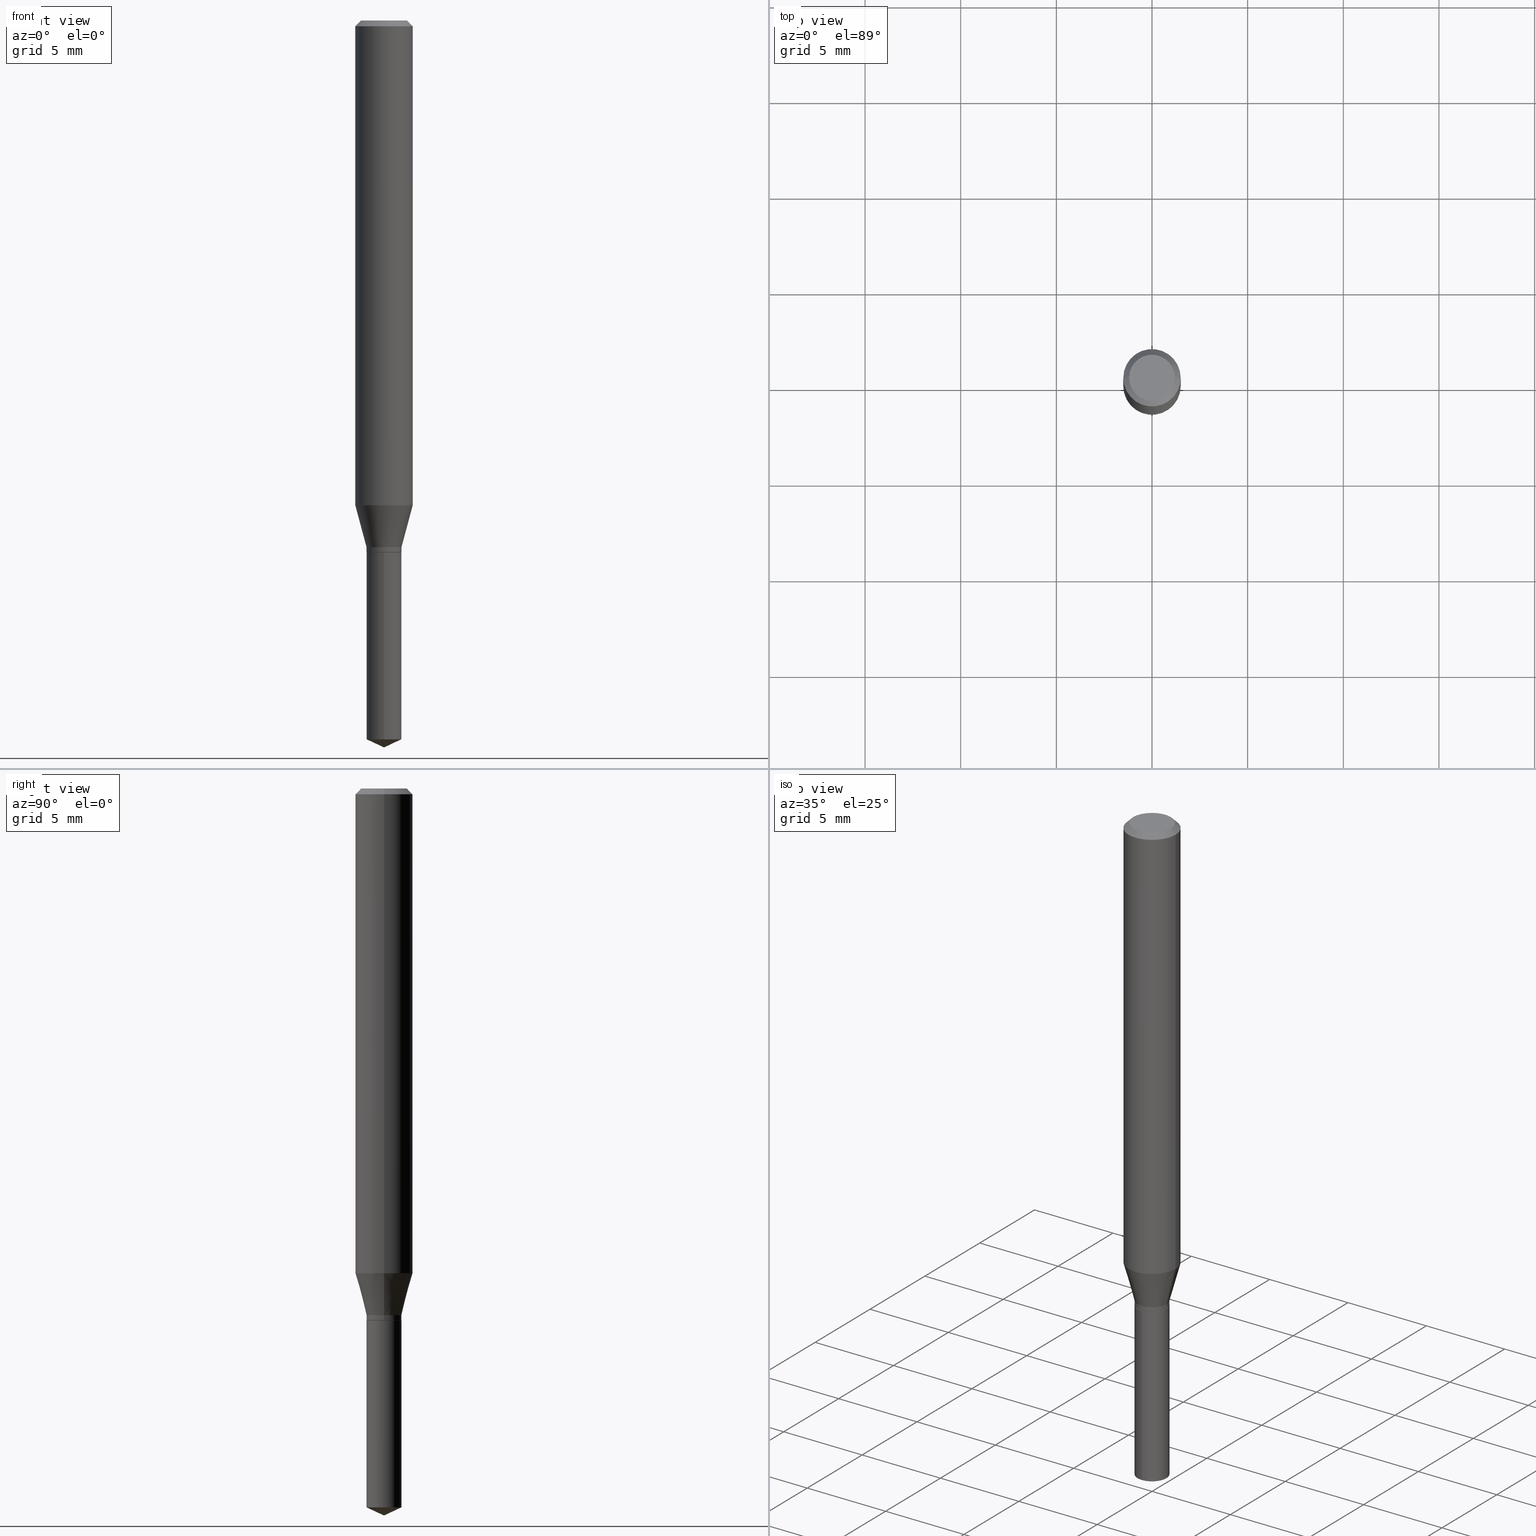
[diagram: canonical four-view strip — front | top / right | iso, engineering-drawing reading convention]
A machine part, canonical four-view strip (front | top / right | iso — engineering-drawing reading convention). The complete STEP part file that produces these views, byte-faithful:
ISO-10303-21;
HEADER;
FILE_DESCRIPTION (( 'STEP AP203' ),
    '1' );
FILE_NAME ('07924.STEP',
    '2024-04-24T06:20:05',
    ( '' ),
    ( '' ),
    'SwSTEP 2.0',
    'SolidWorks 2023',
    '' );
FILE_SCHEMA (( 'CONFIG_CONTROL_DESIGN' ));
ENDSEC;

DATA;
#1 = ORIENTED_EDGE ( 'NONE', *, *, #229, .F. ) ;
#2 = EDGE_CURVE ( 'NONE', #300, #488, #464, .T. ) ;
#3 = UNCERTAINTY_MEASURE_WITH_UNIT (LENGTH_MEASURE( 1.000000000000000082E-05 ), #342, 'distance_accuracy_value', 'NONE');
#4 = FACE_OUTER_BOUND ( 'NONE', #24, .T. ) ;
#5 = CARTESIAN_POINT ( 'NONE',  ( 0.000000000000000000, 0.000000000000000000, 0.000000000000000000 ) ) ;
#6 = CARTESIAN_POINT ( 'NONE',  ( 2.888098660104663766E-31, -4.123439461173779647E-17, -0.01181000000000007044 ) ) ;
#7 = APPROVAL_ROLE ( '' ) ;
#8 = VERTEX_POINT ( 'NONE', #223 ) ;
#9 = DIRECTION ( 'NONE',  ( 1.000000000000000000, -6.982962677686265133E-15, 0.000000000000000000 ) ) ;
#10 = DIRECTION ( 'NONE',  ( -2.445468806185136597E-29, 3.491481338843145583E-15, 1.000000000000000000 ) ) ;
#11 = AXIS2_PLACEMENT_3D ( 'NONE', #241, #161, #356 ) ;
#12 = LINE ( 'NONE', #84, #263 ) ;
#13 = LOCAL_TIME ( 2, 20, 5.000000000000000000, #371 ) ;
#14 = EDGE_CURVE ( 'NONE', #48, #434, #154, .T. ) ;
#15 = PRODUCT_DEFINITION_SHAPE ( 'NONE', 'NONE',  #144 ) ;
#16 = EDGE_CURVE ( 'NONE', #300, #262, #110, .T. ) ;
#17 = CARTESIAN_POINT ( 'NONE',  ( 3.617614152943255727E-29, -5.164992693400060560E-15, -1.479312924306420030 ) ) ;
#18 = CARTESIAN_POINT ( 'NONE',  ( -2.513866563966788138E-16, -0.03600000000000381367, -1.094499999999999806 ) ) ;
#19 = CC_DESIGN_PERSON_AND_ORGANIZATION_ASSIGNMENT ( #107, #269, ( #479 ) ) ;
#20 = VERTEX_POINT ( 'NONE', #134 ) ;
#21 = DIRECTION ( 'NONE',  ( -2.445470214571802116E-29, 3.491479321953280158E-15, 1.000000000000000000 ) ) ;
#22 = CIRCLE ( 'NONE', #85, 0.05904999999999999832 ) ;
#23 = DATE_AND_TIME ( #66, #396 ) ;
#24 = EDGE_LOOP ( 'NONE', ( #270, #423, #267, #1 ) ) ;
#25 = FACE_OUTER_BOUND ( 'NONE', #347, .T. ) ;
#26 = EDGE_LOOP ( 'NONE', ( #463, #411, #340, #440 ) ) ;
#27 = DIRECTION ( 'NONE',  ( -2.445470214571802116E-29, 3.491479321953280158E-15, 1.000000000000000000 ) ) ;
#28 = CARTESIAN_POINT ( 'NONE',  ( 2.888098660104663766E-31, -4.123439461173779647E-17, -0.01181000000000007044 ) ) ;
#29 = CARTESIAN_POINT ( 'NONE',  ( 2.676565608369631794E-29, -3.821426325363822773E-15, -1.094499999999999806 ) ) ;
#30 = CIRCLE ( 'NONE', #36, 0.03599999999999999034 ) ;
#31 = VERTEX_POINT ( 'NONE', #225 ) ;
#32 = AXIS2_PLACEMENT_3D ( 'NONE', #441, #219, #374 ) ;
#33 = DIRECTION ( 'NONE',  ( -2.445468806185136877E-29, 3.491481338843145188E-15, 1.000000000000000000 ) ) ;
#34 = APPROVAL ( #487, 'UNSPECIFIED' ) ;
#35 = EDGE_LOOP ( 'NONE', ( #174, #330, #480, #321 ) ) ;
#36 = AXIS2_PLACEMENT_3D ( 'NONE', #353, #10, #425 ) ;
#37 = DIRECTION ( 'NONE',  ( -2.445468806185136597E-29, 3.491481338843145583E-15, 1.000000000000000000 ) ) ;
#38 = PERSON_AND_ORGANIZATION ( #462, #437 ) ;
#39 = CARTESIAN_POINT ( 'NONE',  ( -0.03549999999999999684, -3.569183654168987378E-15, -1.094500000000000028 ) ) ;
#40 = ORIENTED_EDGE ( 'NONE', *, *, #14, .F. ) ;
#41 = DIRECTION ( 'NONE',  ( 0.000000000000000000, 0.000000000000000000, 1.000000000000000000 ) ) ;
#42 = AXIS2_PLACEMENT_3D ( 'NONE', #138, #409, #450 ) ;
#43 = FACE_OUTER_BOUND ( 'NONE', #100, .T. ) ;
#44 = DIRECTION ( 'NONE',  ( -2.445470214571802116E-29, 3.491479321953280158E-15, 1.000000000000000000 ) ) ;
#45 = APPROVAL_DATE_TIME ( #485, #89 ) ;
#46 = EDGE_CURVE ( 'NONE', #319, #262, #301, .T. ) ;
#47 = DIRECTION ( 'NONE',  ( -6.982962677686265133E-15, -1.000000000000000000, 3.794233324533699112E-15 ) ) ;
#48 = VERTEX_POINT ( 'NONE', #341 ) ;
#49 = ADVANCED_FACE ( 'NONE', ( #304 ), #397, .F. ) ;
#50 = LINE ( 'NONE', #18, #123 ) ;
#51 = CONICAL_SURFACE ( 'NONE', #32, 0.03549999999999999684, 0.7853981633972733079 ) ;
#52 = ORIENTED_EDGE ( 'NONE', *, *, #366, .T. ) ;
#53 = DIRECTION ( 'NONE',  ( -2.445468806185136597E-29, 3.491481338843145583E-15, 1.000000000000000000 ) ) ;
#54 = CARTESIAN_POINT ( 'NONE',  ( 2.676565608369631794E-29, -3.821426325363822773E-15, -1.094499999999999806 ) ) ;
#55 = CARTESIAN_POINT ( 'NONE',  ( 3.617614152943255727E-29, -5.164992693400060560E-15, -1.479312924306420030 ) ) ;
#56 = EDGE_CURVE ( 'NONE', #62, #467, #58, .T. ) ;
#57 = PERSON_AND_ORGANIZATION ( #462, #437 ) ;
#58 = LINE ( 'NONE', #228, #180 ) ;
#59 = DIRECTION ( 'NONE',  ( -6.982962677686265133E-15, -1.000000000000000000, 3.794233324533699112E-15 ) ) ;
#60 = CIRCLE ( 'NONE', #90, 0.03599999999999999728 ) ;
#61 = EDGE_CURVE ( 'NONE', #31, #108, #68, .T. ) ;
#62 = VERTEX_POINT ( 'NONE', #92 ) ;
#63 = DIRECTION ( 'NONE',  ( -2.445468806185136597E-29, 3.491481338843145583E-15, 1.000000000000000000 ) ) ;
#64 = ORIENTED_EDGE ( 'NONE', *, *, #46, .F. ) ;
#65 = EDGE_CURVE ( 'NONE', #294, #20, #416, .T. ) ;
#66 = CALENDAR_DATE ( 2024, 24, 4 ) ;
#67 = DIRECTION ( 'NONE',  ( 1.000000000000000000, -6.982962677686266711E-15, 0.000000000000000000 ) ) ;
#68 = CIRCLE ( 'NONE', #381, 0.03549999999999999684 ) ;
#69 = APPROVAL_PERSON_ORGANIZATION ( #443, #89, #99 ) ;
#70 = DIRECTION ( 'NONE',  ( -2.445468806185136597E-29, 3.491481338843145583E-15, 1.000000000000000000 ) ) ;
#71 = ORIENTED_EDGE ( 'NONE', *, *, #184, .F. ) ;
#72 = MANIFOLD_SOLID_BREP ( 'Body-Move/Copy2[2]', #484 ) ;
#73 = DIRECTION ( 'NONE',  ( 2.438088387897960049E-29, -3.491481338843145188E-15, -1.000000000000000000 ) ) ;
#74 = VECTOR ( 'NONE', #121, 39.37007874015748143 ) ;
#75 = AXIS2_PLACEMENT_3D ( 'NONE', #5, #41, #320 ) ;
#76 = DESIGN_CONTEXT ( 'detailed design', #350, 'design' ) ;
#77 = ORIENTED_EDGE ( 'NONE', *, *, #314, .T. ) ;
#78 = DIRECTION ( 'NONE',  ( -0.7071067811864237829, 7.493145998869907665E-15, 0.7071067811866712516 ) ) ;
#79 = APPLICATION_PROTOCOL_DEFINITION ( 'international standard', 'config_control_design', 1994, #387 ) ;
#80 = ADVANCED_FACE ( 'NONE', ( #127 ), #205, .F. ) ;
#81 = DIRECTION ( 'NONE',  ( -2.445468806185136597E-29, 3.491481338843145583E-15, 1.000000000000000000 ) ) ;
#82 = ADVANCED_FACE ( 'NONE', ( #201 ), #431, .T. ) ;
#83 = ORIENTED_EDGE ( 'NONE', *, *, #202, .T. ) ;
#84 = CARTESIAN_POINT ( 'NONE',  ( 0.05904999999999999832, -4.463468013801466955E-16, -0.01181000000000007044 ) ) ;
#85 = AXIS2_PLACEMENT_3D ( 'NONE', #6, #156, #122 ) ;
#86 = DIRECTION ( 'NONE',  ( -2.445470214571802116E-29, 3.491479321953280158E-15, 1.000000000000000000 ) ) ;
#87 = DIRECTION ( 'NONE',  ( -2.445468806185136877E-29, 3.491481338843145188E-15, 1.000000000000000000 ) ) ;
#88 = FACE_OUTER_BOUND ( 'NONE', #103, .T. ) ;
#89 = APPROVAL ( #133, 'UNSPECIFIED' ) ;
#90 = AXIS2_PLACEMENT_3D ( 'NONE', #465, #37, #9 ) ;
#91 = DIRECTION ( 'NONE',  ( -2.445468806185136597E-29, 3.491481338843145583E-15, 1.000000000000000000 ) ) ;
#92 = CARTESIAN_POINT ( 'NONE',  ( 3.658667988020872822E-29, -5.223602213574301462E-15, -1.496099999999999985 ) ) ;
#93 = DIRECTION ( 'NONE',  ( 1.000000000000000000, -6.982962677686265133E-15, 0.000000000000000000 ) ) ;
#94 = ORIENTED_EDGE ( 'NONE', *, *, #408, .F. ) ;
#95 = DIRECTION ( 'NONE',  ( -2.438088387897960049E-29, 3.491481338843145188E-15, 1.000000000000000000 ) ) ;
#96 = PERSON_AND_ORGANIZATION_ROLE ( 'creator' ) ;
#97 = DIRECTION ( 'NONE',  ( 6.982962677686265922E-15, 1.000000000000000000, -3.491479321953280158E-15 ) ) ;
#98 = DIRECTION ( 'NONE',  ( -0.2588190451025212391, 5.211531920934549464E-15, 0.9659258262890679791 ) ) ;
#99 = APPROVAL_ROLE ( '' ) ;
#100 = EDGE_LOOP ( 'NONE', ( #209, #221, #64, #71 ) ) ;
#101 = DIRECTION ( 'NONE',  ( 1.000000000000000000, -6.982962677686265133E-15, 0.000000000000000000 ) ) ;
#102 = AXIS2_PLACEMENT_3D ( 'NONE', #471, #253, #254 ) ;
#103 = EDGE_LOOP ( 'NONE', ( #168, #275, #418, #178 ) ) ;
#104 = EDGE_CURVE ( 'NONE', #183, #319, #12, .T. ) ;
#105 = CC_DESIGN_APPROVAL ( #89, ( #407 ) ) ;
#106 = FACE_OUTER_BOUND ( 'NONE', #303, .T. ) ;
#107 = PERSON_AND_ORGANIZATION ( #462, #437 ) ;
#108 = VERTEX_POINT ( 'NONE', #385 ) ;
#109 =( LENGTH_UNIT ( ) NAMED_UNIT ( * ) SI_UNIT ( $, .METRE. ) );
#110 = LINE ( 'NONE', #334, #386 ) ;
#111 = DIRECTION ( 'NONE',  ( -2.445470214571802116E-29, 3.491479321953280158E-15, 1.000000000000000000 ) ) ;
#112 = CIRCLE ( 'NONE', #11, 0.03599999999999999034 ) ;
#113 = VECTOR ( 'NONE', #98, 39.37007874015748854 ) ;
#114 = EDGE_CURVE ( 'NONE', #294, #8, #112, .T. ) ;
#115 = VERTEX_POINT ( 'NONE', #276 ) ;
#116 = DIRECTION ( 'NONE',  ( 0.7071067811865453523, -7.319954787623248157E-15, -0.7071067811865496822 ) ) ;
#117 = CIRCLE ( 'NONE', #458, 0.04724000000000000421 ) ;
#118 =( GEOMETRIC_REPRESENTATION_CONTEXT ( 3 ) GLOBAL_UNCERTAINTY_ASSIGNED_CONTEXT ( ( #3 ) ) GLOBAL_UNIT_ASSIGNED_CONTEXT ( ( #342, #274, #271 ) ) REPRESENTATION_CONTEXT ( 'NONE', 'WORKASPACE' ) );
#119 = CARTESIAN_POINT ( 'NONE',  ( 0.000000000000000000, 0.000000000000000000, 0.000000000000000000 ) ) ;
#120 = ORIENTED_EDGE ( 'NONE', *, *, #242, .T. ) ;
#121 = DIRECTION ( 'NONE',  ( 0.7071067811864237829, -2.468850131080960568E-15, 0.7071067811866712516 ) ) ;
#122 = DIRECTION ( 'NONE',  ( 1.000000000000000000, -6.982962677686266711E-15, 0.000000000000000000 ) ) ;
#123 = VECTOR ( 'NONE', #260, 39.37007874015748143 ) ;
#124 = CONICAL_SURFACE ( 'NONE', #344, 0.03599999999999999728, 0.2617993877991499629 ) ;
#125 = CARTESIAN_POINT ( 'NONE',  ( -9.261968845786000133E-28, 1.322362114038720264E-13, 37.87397874015748300 ) ) ;
#126 = FACE_OUTER_BOUND ( 'NONE', #297, .T. ) ;
#127 = FACE_OUTER_BOUND ( 'NONE', #187, .T. ) ;
#128 = ORIENTED_EDGE ( 'NONE', *, *, #395, .T. ) ;
#129 = CARTESIAN_POINT ( 'NONE',  ( -0.03599999999999999034, -3.545904070925723094E-15, -1.093999999999999861 ) ) ;
#130 = AXIS2_PLACEMENT_3D ( 'NONE', #54, #212, #97 ) ;
#131 = CARTESIAN_POINT ( 'NONE',  ( 0.03599999999999999728, -4.035104983301021910E-15, -1.083699999999999886 ) ) ;
#132 = AXIS2_PLACEMENT_3D ( 'NONE', #394, #53, #93 ) ;
#133 = APPROVAL_STATUS ( 'not_yet_approved' ) ;
#134 = CARTESIAN_POINT ( 'NONE',  ( -0.03599999999999999728, -3.545904070925723094E-15, -1.083699999999999886 ) ) ;
#135 = EDGE_CURVE ( 'NONE', #467, #48, #247, .T. ) ;
#136 = DIRECTION ( 'NONE',  ( 1.000000000000000000, -6.982962677686265133E-15, 0.000000000000000000 ) ) ;
#137 = DIRECTION ( 'NONE',  ( -2.445468806185136597E-29, 3.491481338843145583E-15, 1.000000000000000000 ) ) ;
#138 = CARTESIAN_POINT ( 'NONE',  ( 2.888098660104663766E-31, -4.123439461173779647E-17, -0.01181000000000007044 ) ) ;
#139 = EDGE_LOOP ( 'NONE', ( #435, #444, #120, #483 ) ) ;
#140 = DIRECTION ( 'NONE',  ( 2.445468806185136597E-29, -3.491481338843145583E-15, -1.000000000000000000 ) ) ;
#141 = EDGE_CURVE ( 'NONE', #108, #8, #427, .T. ) ;
#142 = VECTOR ( 'NONE', #292, 39.37007874015748854 ) ;
#143 = ORIENTED_EDGE ( 'NONE', *, *, #14, .T. ) ;
#144 = PRODUCT_DEFINITION ( 'UNKNOWN', '', #407, #76 ) ;
#145 = DATE_AND_TIME ( #468, #280 ) ;
#146 = EDGE_LOOP ( 'NONE', ( #285, #143 ) ) ;
#147 = FACE_OUTER_BOUND ( 'NONE', #240, .T. ) ;
#148 = ORIENTED_EDGE ( 'NONE', *, *, #191, .T. ) ;
#149 = VECTOR ( 'NONE', #250, 39.37007874015748143 ) ;
#150 = ADVANCED_FACE ( 'NONE', ( #4 ), #193, .T. ) ;
#151 = CARTESIAN_POINT ( 'NONE',  ( 4.132873053354867254E-48, -5.900647395337818946E-34, -1.690012582823346072E-19 ) ) ;
#152 = ORIENTED_EDGE ( 'NONE', *, *, #324, .T. ) ;
#153 = DIRECTION ( 'NONE',  ( -2.445468806185136597E-29, 3.491481338843145583E-15, 1.000000000000000000 ) ) ;
#154 = CIRCLE ( 'NONE', #392, 0.03599999999999999728 ) ;
#155 = AXIS2_PLACEMENT_3D ( 'NONE', #29, #111, #272 ) ;
#156 = DIRECTION ( 'NONE',  ( -2.445468806185136597E-29, 3.491481338843145583E-15, 1.000000000000000000 ) ) ;
#157 = CC_DESIGN_PERSON_AND_ORGANIZATION_ASSIGNMENT ( #57, #336, ( #407 ) ) ;
#158 = COORDINATED_UNIVERSAL_TIME_OFFSET ( 5, 0, .BEHIND. ) ;
#159 = ADVANCED_FACE ( 'NONE', ( #43 ), #311, .T. ) ;
#160 = DIRECTION ( 'NONE',  ( -0.7071067811865453523, 2.468850131082234184E-15, -0.7071067811865496822 ) ) ;
#161 = DIRECTION ( 'NONE',  ( -2.445468806185136597E-29, 3.491481338843145583E-15, 1.000000000000000000 ) ) ;
#162 = APPROVAL_PERSON_ORGANIZATION ( #38, #195, #7 ) ;
#163 = PERSON_AND_ORGANIZATION ( #462, #437 ) ;
#164 = CARTESIAN_POINT ( 'NONE',  ( 2.557953848736627702E-16, 0.03599999999999617395, -1.094500000000000028 ) ) ;
#165 = CARTESIAN_POINT ( 'NONE',  ( -0.03599999999999999728, -3.527922942030680819E-15, -1.083699999999999886 ) ) ;
#166 = ORIENTED_EDGE ( 'NONE', *, *, #56, .T. ) ;
#167 = CARTESIAN_POINT ( 'NONE',  ( -0.04724000000000000421, 3.504923541997677355E-16, -3.380025165670481712E-19 ) ) ;
#168 = ORIENTED_EDGE ( 'NONE', *, *, #217, .T. ) ;
#169 = AXIS2_PLACEMENT_3D ( 'NONE', #28, #413, #67 ) ;
#170 = FACE_OUTER_BOUND ( 'NONE', #406, .T. ) ;
#171 = ORIENTED_EDGE ( 'NONE', *, *, #390, .T. ) ;
#172 = DIRECTION ( 'NONE',  ( -6.982962677686265133E-15, -1.000000000000000000, 0.000000000000000000 ) ) ;
#173 = PERSON_AND_ORGANIZATION ( #462, #437 ) ;
#174 = ORIENTED_EDGE ( 'NONE', *, *, #202, .F. ) ;
#175 = EDGE_CURVE ( 'NONE', #20, #486, #218, .T. ) ;
#176 = CARTESIAN_POINT ( 'NONE',  ( -0.05905000000000011628, -3.063792449894915431E-15, -0.9976762288855370864 ) ) ;
#177 = DATE_AND_TIME ( #439, #197 ) ;
#178 = ORIENTED_EDGE ( 'NONE', *, *, #395, .F. ) ;
#179 = DIRECTION ( 'NONE',  ( -1.000000000000000000, 6.982962677686265922E-15, -4.876176775795935793E-29 ) ) ;
#180 = VECTOR ( 'NONE', #421, 39.37007874015748143 ) ;
#181 = CIRCLE ( 'NONE', #132, 0.03549999999999999684 ) ;
#182 = PERSON_AND_ORGANIZATION ( #462, #437 ) ;
#183 = VERTEX_POINT ( 'NONE', #382 ) ;
#184 = EDGE_CURVE ( 'NONE', #488, #319, #238, .T. ) ;
#185 = LENGTH_MEASURE_WITH_UNIT ( LENGTH_MEASURE( 0.02539999999999999897 ), #109 );
#186 = CARTESIAN_POINT ( 'NONE',  ( 2.439786096412003375E-29, -3.483367935361255318E-15, -0.9976762288855370864 ) ) ;
#187 = EDGE_LOOP ( 'NONE', ( #365, #378 ) ) ;
#188 = AXIS2_PLACEMENT_3D ( 'NONE', #349, #282, #204 ) ;
#189 = CONICAL_SURFACE ( 'NONE', #102, 84.42940631927417883, 1.134464013796315118 ) ;
#190 = MECHANICAL_CONTEXT ( 'NONE', #387, 'mechanical' ) ;
#191 = EDGE_CURVE ( 'NONE', #8, #294, #30, .T. ) ;
#192 = ORIENTED_EDGE ( 'NONE', *, *, #46, .T. ) ;
#193 = CYLINDRICAL_SURFACE ( 'NONE', #457, 0.05905000000000006077 ) ;
#194 = DIRECTION ( 'NONE',  ( 1.000000000000000000, -6.982962677686266711E-15, 4.876176775795935793E-29 ) ) ;
#195 = APPROVAL ( #239, 'UNSPECIFIED' ) ;
#196 = CONICAL_SURFACE ( 'NONE', #475, 84.42940631927417883, 1.134464013796315118 ) ;
#197 = LOCAL_TIME ( 2, 20, 5.000000000000000000, #158 ) ;
#198 = ORIENTED_EDGE ( 'NONE', *, *, #370, .F. ) ;
#199 = DIRECTION ( 'NONE',  ( -2.445468806185136877E-29, 3.491481338843145188E-15, 1.000000000000000000 ) ) ;
#200 = APPROVAL_PERSON_ORGANIZATION ( #182, #34, #482 ) ;
#201 = FACE_OUTER_BOUND ( 'NONE', #26, .T. ) ;
#202 = EDGE_CURVE ( 'NONE', #31, #294, #428, .T. ) ;
#203 = COORDINATED_UNIVERSAL_TIME_OFFSET ( 5, 0, .BEHIND. ) ;
#204 = DIRECTION ( 'NONE',  ( 1.000000000000000000, -6.982962677686266711E-15, 4.876176775795935232E-29 ) ) ;
#205 = PLANE ( 'NONE',  #415 ) ;
#206 = AXIS2_PLACEMENT_3D ( 'NONE', #368, #27, #59 ) ;
#207 = CIRCLE ( 'NONE', #393, 0.04724000000000000421 ) ;
#208 = CARTESIAN_POINT ( 'NONE',  ( 8.265746106709734507E-48, -1.180129479067563789E-33, -3.380025165646692144E-19 ) ) ;
#209 = ORIENTED_EDGE ( 'NONE', *, *, #455, .T. ) ;
#210 = CYLINDRICAL_SURFACE ( 'NONE', #422, 0.03599999999999999728 ) ;
#211 = ORIENTED_EDGE ( 'NONE', *, *, #135, .T. ) ;
#212 = DIRECTION ( 'NONE',  ( 2.445470214571801836E-29, -3.491479321953280158E-15, -1.000000000000000000 ) ) ;
#213 = DIRECTION ( 'NONE',  ( -6.982962677686265133E-15, -1.000000000000000000, 0.000000000000000000 ) ) ;
#214 = CC_DESIGN_DATE_AND_TIME_ASSIGNMENT ( #258, #296, ( #144 ) ) ;
#215 = CALENDAR_DATE ( 2024, 24, 4 ) ;
#216 = CARTESIAN_POINT ( 'NONE',  ( 2.439786096412003375E-29, -3.483367935361255318E-15, -0.9976762288855370864 ) ) ;
#217 = EDGE_CURVE ( 'NONE', #486, #20, #60, .T. ) ;
#218 = CIRCLE ( 'NONE', #452, 0.03599999999999999728 ) ;
#219 = DIRECTION ( 'NONE',  ( -2.445468806185136597E-29, 3.491481338843145583E-15, 1.000000000000000000 ) ) ;
#220 = APPROVAL_DATE_TIME ( #177, #195 ) ;
#221 = ORIENTED_EDGE ( 'NONE', *, *, #16, .T. ) ;
#222 = DIRECTION ( 'NONE',  ( 1.000000000000000000, -6.982962677686266711E-15, 4.876176775795935232E-29 ) ) ;
#223 = CARTESIAN_POINT ( 'NONE',  ( 0.03599999999999999034, -4.071067241091106461E-15, -1.093999999999999861 ) ) ;
#224 = DATE_TIME_ROLE ( 'classification_date' ) ;
#225 = CARTESIAN_POINT ( 'NONE',  ( -0.03549999999999999684, -3.566534426994876177E-15, -1.094500000000000028 ) ) ;
#226 = DIRECTION ( 'NONE',  ( -1.000000000000000000, 6.982962677686266711E-15, 0.000000000000000000 ) ) ;
#227 = VECTOR ( 'NONE', #160, 39.37007874015748143 ) ;
#228 = CARTESIAN_POINT ( 'NONE',  ( 3.658668015054778287E-29, -5.223602213574301462E-15, -1.496099999999999985 ) ) ;
#229 = EDGE_CURVE ( 'NONE', #262, #319, #22, .T. ) ;
#230 = ORIENTED_EDGE ( 'NONE', *, *, #191, .F. ) ;
#231 = CARTESIAN_POINT ( 'NONE',  ( 2.888098660104663766E-31, -4.123439461173779647E-17, -0.01181000000000007044 ) ) ;
#232 = CLOSED_SHELL ( 'NONE', ( #318, #380, #244, #432, #49 ) ) ;
#233 = LOCAL_TIME ( 2, 20, 5.000000000000000000, #405 ) ;
#234 = CARTESIAN_POINT ( 'NONE',  ( 2.676565608369632355E-29, -3.821426325363822773E-15, -1.094500000000000028 ) ) ;
#235 = ORIENTED_EDGE ( 'NONE', *, *, #324, .F. ) ;
#236 = CARTESIAN_POINT ( 'NONE',  ( 0.000000000000000000, 0.000000000000000000, 0.000000000000000000 ) ) ;
#237 = CC_DESIGN_DATE_AND_TIME_ASSIGNMENT ( #23, #224, ( #479 ) ) ;
#238 = LINE ( 'NONE', #384, #284 ) ;
#239 = APPROVAL_STATUS ( 'not_yet_approved' ) ;
#240 = EDGE_LOOP ( 'NONE', ( #346, #77, #152, #40 ) ) ;
#241 = CARTESIAN_POINT ( 'NONE',  ( 2.675342873966538993E-29, -3.819680584694400481E-15, -1.093999999999999861 ) ) ;
#242 = EDGE_CURVE ( 'NONE', #383, #262, #316, .T. ) ;
#243 = DIRECTION ( 'NONE',  ( -6.982962677686266711E-15, -1.000000000000000000, 3.520397390770460575E-15 ) ) ;
#244 = ADVANCED_FACE ( 'NONE', ( #322 ), #196, .T. ) ;
#245 = APPLICATION_PROTOCOL_DEFINITION ( 'international standard', 'config_control_design', 1994, #350 ) ;
#246 = CC_DESIGN_APPROVAL ( #34, ( #479 ) ) ;
#247 = LINE ( 'NONE', #164, #331 ) ;
#248 = EDGE_CURVE ( 'NONE', #8, #486, #388, .T. ) ;
#249 = MANIFOLD_SOLID_BREP ( 'Body-Move/Copy2[1]', #232 ) ;
#250 = DIRECTION ( 'NONE',  ( -6.328713451373372534E-15, -0.9063077870366488265, 0.4226182617407018283 ) ) ;
#251 = AXIS2_PLACEMENT_3D ( 'NONE', #236, #81, #351 ) ;
#252 = CC_DESIGN_APPROVAL ( #195, ( #144 ) ) ;
#253 = DIRECTION ( 'NONE',  ( -2.445470214571802116E-29, 3.491479321953280158E-15, 1.000000000000000000 ) ) ;
#254 = DIRECTION ( 'NONE',  ( -6.982962677686266711E-15, -1.000000000000000000, 3.520397390770460575E-15 ) ) ;
#255 = CC_DESIGN_PERSON_AND_ORGANIZATION_ASSIGNMENT ( #315, #355, ( #362 ) ) ;
#256 = ORIENTED_EDGE ( 'NONE', *, *, #332, .F. ) ;
#257 = EDGE_CURVE ( 'NONE', #434, #48, #359, .T. ) ;
#258 = DATE_AND_TIME ( #339, #233 ) ;
#259 = ORIENTED_EDGE ( 'NONE', *, *, #314, .F. ) ;
#260 = DIRECTION ( 'NONE',  ( -2.445470214571802396E-29, 3.491479321953280158E-15, 1.000000000000000000 ) ) ;
#261 = SHAPE_DEFINITION_REPRESENTATION ( #15, #399 ) ;
#262 = VERTEX_POINT ( 'NONE', #357 ) ;
#263 = VECTOR ( 'NONE', #116, 39.37007874015748143 ) ;
#264 = CONICAL_SURFACE ( 'NONE', #273, 0.05904999999999999832, 0.7853981633974452814 ) ;
#265 = DIRECTION ( 'NONE',  ( -2.445468806185136597E-29, 3.491481338843145583E-15, 1.000000000000000000 ) ) ;
#266 = DIRECTION ( 'NONE',  ( 1.000000000000000000, -6.982962677686265133E-15, 0.000000000000000000 ) ) ;
#267 = ORIENTED_EDGE ( 'NONE', *, *, #184, .T. ) ;
#268 = PLANE ( 'NONE',  #302 ) ;
#269 = PERSON_AND_ORGANIZATION_ROLE ( 'classification_officer' ) ;
#270 = ORIENTED_EDGE ( 'NONE', *, *, #16, .F. ) ;
#271 =( NAMED_UNIT ( * ) SI_UNIT ( $, .STERADIAN. ) SOLID_ANGLE_UNIT ( ) );
#272 = DIRECTION ( 'NONE',  ( -6.982962677686265133E-15, -1.000000000000000000, 3.794233324533699112E-15 ) ) ;
#273 = AXIS2_PLACEMENT_3D ( 'NONE', #231, #140, #226 ) ;
#274 =( NAMED_UNIT ( * ) PLANE_ANGLE_UNIT ( ) SI_UNIT ( $, .RADIAN. ) );
#275 = ORIENTED_EDGE ( 'NONE', *, *, #370, .T. ) ;
#276 = CARTESIAN_POINT ( 'NONE',  ( -2.513866563966693968E-16, -0.03600000000000517369, -1.479312924306420030 ) ) ;
#277 = AXIS2_PLACEMENT_3D ( 'NONE', #17, #328, #213 ) ;
#278 = AXIS2_PLACEMENT_3D ( 'NONE', #333, #478, #136 ) ;
#279 = DIRECTION ( 'NONE',  ( -2.445470214571802396E-29, 3.491479321953280158E-15, 1.000000000000000000 ) ) ;
#280 = LOCAL_TIME ( 2, 20, 5.000000000000000000, #326 ) ;
#281 = EDGE_CURVE ( 'NONE', #62, #115, #398, .T. ) ;
#282 = DIRECTION ( 'NONE',  ( -2.445468806185136597E-29, 3.491481338843145583E-15, 1.000000000000000000 ) ) ;
#283 = DIRECTION ( 'NONE',  ( 1.000000000000000000, -6.982962677686265133E-15, 0.000000000000000000 ) ) ;
#284 = VECTOR ( 'NONE', #199, 39.37007874015748143 ) ;
#285 = ORIENTED_EDGE ( 'NONE', *, *, #257, .T. ) ;
#286 = CARTESIAN_POINT ( 'NONE',  ( 0.03599999999999999728, -2.513866563967055858E-16, 1.755423639286536563E-30 ) ) ;
#287 = CARTESIAN_POINT ( 'NONE',  ( 0.05904999999999999832, -4.535783407291118600E-16, -0.01181000000000007044 ) ) ;
#288 = ORIENTED_EDGE ( 'NONE', *, *, #257, .F. ) ;
#289 = CARTESIAN_POINT ( 'NONE',  ( 0.000000000000000000, 0.000000000000000000, 0.000000000000000000 ) ) ;
#290 = ORIENTED_EDGE ( 'NONE', *, *, #242, .F. ) ;
#291 = AXIS2_PLACEMENT_3D ( 'NONE', #186, #70, #420 ) ;
#292 = DIRECTION ( 'NONE',  ( 0.2588190451025212391, 1.565188264969622362E-15, 0.9659258262890679791 ) ) ;
#293 = APPROVAL_DATE_TIME ( #145, #34 ) ;
#294 = VERTEX_POINT ( 'NONE', #129 ) ;
#295 = FACE_OUTER_BOUND ( 'NONE', #35, .T. ) ;
#296 = DATE_TIME_ROLE ( 'creation_date' ) ;
#297 = EDGE_LOOP ( 'NONE', ( #472, #211, #288, #235 ) ) ;
#298 = ADVANCED_FACE ( 'NONE', ( #88 ), #124, .T. ) ;
#299 = LINE ( 'NONE', #165, #113 ) ;
#300 = VERTEX_POINT ( 'NONE', #176 ) ;
#301 = CIRCLE ( 'NONE', #169, 0.05904999999999999832 ) ;
#302 = AXIS2_PLACEMENT_3D ( 'NONE', #151, #73, #179 ) ;
#303 = EDGE_LOOP ( 'NONE', ( #52, #309 ) ) ;
#304 = FACE_OUTER_BOUND ( 'NONE', #146, .T. ) ;
#305 = CARTESIAN_POINT ( 'NONE',  ( -2.513866563966788138E-16, -0.03600000000000381367, -1.094499999999999806 ) ) ;
#306 = CARTESIAN_POINT ( 'NONE',  ( 2.557953848736722859E-16, 0.03599999999999483474, -1.479312924306420030 ) ) ;
#307 = EDGE_LOOP ( 'NONE', ( #198, #358, #128, #456 ) ) ;
#308 = VECTOR ( 'NONE', #87, 39.37007874015748143 ) ;
#309 = ORIENTED_EDGE ( 'NONE', *, *, #332, .T. ) ;
#310 = ADVANCED_FACE ( 'NONE', ( #376 ), #210, .T. ) ;
#311 = CYLINDRICAL_SURFACE ( 'NONE', #251, 0.05905000000000006077 ) ;
#312 = VECTOR ( 'NONE', #78, 39.37007874015748143 ) ;
#313 = CONICAL_SURFACE ( 'NONE', #42, 0.05904999999999999832, 0.7853981633974452814 ) ;
#314 = EDGE_CURVE ( 'NONE', #467, #115, #325, .T. ) ;
#315 = PERSON_AND_ORGANIZATION ( #462, #437 ) ;
#316 = LINE ( 'NONE', #461, #227 ) ;
#317 = CC_DESIGN_SECURITY_CLASSIFICATION ( #479, ( #407 ) ) ;
#318 = ADVANCED_FACE ( 'NONE', ( #126 ), #445, .T. ) ;
#319 = VERTEX_POINT ( 'NONE', #287 ) ;
#320 = DIRECTION ( 'NONE',  ( 1.000000000000000000, 0.000000000000000000, 0.000000000000000000 ) ) ;
#321 = ORIENTED_EDGE ( 'NONE', *, *, #114, .F. ) ;
#322 = FACE_OUTER_BOUND ( 'NONE', #430, .T. ) ;
#323 = CARTESIAN_POINT ( 'NONE',  ( 0.03549999999999999684, -4.069321500421685746E-15, -1.094500000000000028 ) ) ;
#324 = EDGE_CURVE ( 'NONE', #115, #434, #50, .T. ) ;
#325 = CIRCLE ( 'NONE', #277, 0.03600000000000000422 ) ;
#326 = COORDINATED_UNIVERSAL_TIME_OFFSET ( 5, 0, .BEHIND. ) ;
#327 = ADVANCED_FACE ( 'NONE', ( #335 ), #352, .T. ) ;
#328 = DIRECTION ( 'NONE',  ( -2.445470214571802116E-29, 3.491479321953280158E-15, 1.000000000000000000 ) ) ;
#329 = LINE ( 'NONE', #131, #142 ) ;
#330 = ORIENTED_EDGE ( 'NONE', *, *, #61, .T. ) ;
#331 = VECTOR ( 'NONE', #279, 39.37007874015748143 ) ;
#332 = EDGE_CURVE ( 'NONE', #183, #383, #117, .T. ) ;
#333 = CARTESIAN_POINT ( 'NONE',  ( 2.676565608369632355E-29, -3.821426325363822773E-15, -1.094500000000000028 ) ) ;
#334 = CARTESIAN_POINT ( 'NONE',  ( -0.05905000000000006077, 4.195754854663395916E-16, -2.904631170795524694E-30 ) ) ;
#335 = FACE_OUTER_BOUND ( 'NONE', #307, .T. ) ;
#336 = PERSON_AND_ORGANIZATION_ROLE ( 'design_supplier' ) ;
#337 = ORIENTED_EDGE ( 'NONE', *, *, #141, .F. ) ;
#338 = CYLINDRICAL_SURFACE ( 'NONE', #155, 0.03599999999999999728 ) ;
#339 = CALENDAR_DATE ( 2024, 24, 4 ) ;
#340 = ORIENTED_EDGE ( 'NONE', *, *, #248, .T. ) ;
#341 = CARTESIAN_POINT ( 'NONE',  ( 2.557953848736722366E-16, 0.03599999999999617395, -1.094500000000000028 ) ) ;
#342 =( CONVERSION_BASED_UNIT ( 'INCH', #185 ) LENGTH_UNIT ( ) NAMED_UNIT ( #343 ) );
#343 = DIMENSIONAL_EXPONENTS ( 1.000000000000000000, 0.000000000000000000, 0.000000000000000000, 0.000000000000000000, 0.000000000000000000, 0.000000000000000000, 0.000000000000000000 ) ;
#344 = AXIS2_PLACEMENT_3D ( 'NONE', #481, #63, #101 ) ;
#345 = FACE_OUTER_BOUND ( 'NONE', #139, .T. ) ;
#346 = ORIENTED_EDGE ( 'NONE', *, *, #135, .F. ) ;
#347 = EDGE_LOOP ( 'NONE', ( #256, #460, #192, #290 ) ) ;
#348 = ORIENTED_EDGE ( 'NONE', *, *, #65, .T. ) ;
#349 = CARTESIAN_POINT ( 'NONE',  ( 0.000000000000000000, 0.000000000000000000, 0.000000000000000000 ) ) ;
#350 = APPLICATION_CONTEXT ( 'configuration controlled 3d designs of mechanical parts and assemblies' ) ;
#351 = DIRECTION ( 'NONE',  ( 1.000000000000000000, -6.982962677686266711E-15, 4.876176775795935793E-29 ) ) ;
#352 = CONICAL_SURFACE ( 'NONE', #360, 0.03599999999999999728, 0.2617993877991499629 ) ;
#353 = CARTESIAN_POINT ( 'NONE',  ( 2.675342873966538993E-29, -3.819680584694400481E-15, -1.093999999999999861 ) ) ;
#354 = CC_DESIGN_PERSON_AND_ORGANIZATION_ASSIGNMENT ( #163, #96, ( #144 ) ) ;
#355 = PERSON_AND_ORGANIZATION_ROLE ( 'design_owner' ) ;
#356 = DIRECTION ( 'NONE',  ( 1.000000000000000000, -6.982962677686266711E-15, 0.000000000000000000 ) ) ;
#357 = CARTESIAN_POINT ( 'NONE',  ( -0.05904999999999999832, -1.342725679520156242E-15, -0.01181000000000007044 ) ) ;
#358 = ORIENTED_EDGE ( 'NONE', *, *, #175, .T. ) ;
#359 = CIRCLE ( 'NONE', #373, 0.03599999999999999728 ) ;
#360 = AXIS2_PLACEMENT_3D ( 'NONE', #433, #265, #391 ) ;
#361 = ORIENTED_EDGE ( 'NONE', *, *, #281, .T. ) ;
#362 = PRODUCT ( '07924', '07924', '', ( #190 ) ) ;
#363 = DIRECTION ( 'NONE',  ( 1.000000000000000000, -6.982962677686266711E-15, 4.876185090822587894E-29 ) ) ;
#364 = FACE_OUTER_BOUND ( 'NONE', #447, .T. ) ;
#365 = ORIENTED_EDGE ( 'NONE', *, *, #390, .F. ) ;
#366 = EDGE_CURVE ( 'NONE', #383, #183, #207, .T. ) ;
#367 = ORIENTED_EDGE ( 'NONE', *, *, #281, .F. ) ;
#368 = CARTESIAN_POINT ( 'NONE',  ( 2.676565608369631794E-29, -3.821426325363822773E-15, -1.094499999999999806 ) ) ;
#369 = DIRECTION ( 'NONE',  ( -2.445468806185136597E-29, 3.491481338843145583E-15, 1.000000000000000000 ) ) ;
#370 = EDGE_CURVE ( 'NONE', #20, #300, #299, .T. ) ;
#371 = COORDINATED_UNIVERSAL_TIME_OFFSET ( 5, 0, .BEHIND. ) ;
#372 = CARTESIAN_POINT ( 'NONE',  ( 2.676565608369631794E-29, -3.821426325363822773E-15, -1.094499999999999806 ) ) ;
#373 = AXIS2_PLACEMENT_3D ( 'NONE', #389, #44, #47 ) ;
#374 = DIRECTION ( 'NONE',  ( 1.000000000000000000, -6.982962677686265133E-15, 0.000000000000000000 ) ) ;
#375 = ORIENTED_EDGE ( 'NONE', *, *, #56, .F. ) ;
#376 = FACE_OUTER_BOUND ( 'NONE', #470, .T. ) ;
#377 = DIRECTION ( 'NONE',  ( -2.445470214571802116E-29, 3.491479321953280158E-15, 1.000000000000000000 ) ) ;
#378 = ORIENTED_EDGE ( 'NONE', *, *, #61, .F. ) ;
#379 = AXIS2_PLACEMENT_3D ( 'NONE', #216, #137, #451 ) ;
#380 = ADVANCED_FACE ( 'NONE', ( #364 ), #189, .T. ) ;
#381 = AXIS2_PLACEMENT_3D ( 'NONE', #234, #369, #266 ) ;
#382 = CARTESIAN_POINT ( 'NONE',  ( 0.04724000000000000421, -3.852183633974369345E-16, -3.380025165621689721E-19 ) ) ;
#383 = VERTEX_POINT ( 'NONE', #167 ) ;
#384 = CARTESIAN_POINT ( 'NONE',  ( 0.05905000000000006077, -4.123439461173744764E-16, 2.879382386107503023E-30 ) ) ;
#385 = CARTESIAN_POINT ( 'NONE',  ( 0.03549999999999999684, -4.069321500421685746E-15, -1.094500000000000028 ) ) ;
#386 = VECTOR ( 'NONE', #402, 39.37007874015748143 ) ;
#387 = APPLICATION_CONTEXT ( 'configuration controlled 3d designs of mechanical parts and assemblies' ) ;
#388 = LINE ( 'NONE', #286, #308 ) ;
#389 = CARTESIAN_POINT ( 'NONE',  ( 2.676565608369631794E-29, -3.821426325363822773E-15, -1.094499999999999806 ) ) ;
#390 = EDGE_CURVE ( 'NONE', #108, #31, #181, .T. ) ;
#391 = DIRECTION ( 'NONE',  ( 1.000000000000000000, -6.982962677686265133E-15, 0.000000000000000000 ) ) ;
#392 = AXIS2_PLACEMENT_3D ( 'NONE', #372, #377, #477 ) ;
#393 = AXIS2_PLACEMENT_3D ( 'NONE', #208, #91, #363 ) ;
#394 = CARTESIAN_POINT ( 'NONE',  ( 2.676565608369632355E-29, -3.821426325363822773E-15, -1.094500000000000028 ) ) ;
#395 = EDGE_CURVE ( 'NONE', #486, #488, #329, .T. ) ;
#396 = LOCAL_TIME ( 2, 20, 5.000000000000000000, #203 ) ;
#397 = PLANE ( 'NONE',  #130 ) ;
#398 = LINE ( 'NONE', #469, #149 ) ;
#399 = ADVANCED_BREP_SHAPE_REPRESENTATION ( '07924', ( #249, #72, #75 ), #118 ) ;
#400 = DIRECTION ( 'NONE',  ( 1.000000000000000000, -6.982962677686265922E-15, 4.876176775795935793E-29 ) ) ;
#401 = PERSON_AND_ORGANIZATION_ROLE ( 'creator' ) ;
#402 = DIRECTION ( 'NONE',  ( -2.445468806185136877E-29, 3.491481338843145188E-15, 1.000000000000000000 ) ) ;
#403 = DIRECTION ( 'NONE',  ( -2.445468806185136597E-29, 3.491481338843145583E-15, 1.000000000000000000 ) ) ;
#404 = CARTESIAN_POINT ( 'NONE',  ( -2.641543465264018300E-30, -8.032704676160352560E-15, -1.094500000000000028 ) ) ;
#405 = COORDINATED_UNIVERSAL_TIME_OFFSET ( 5, 0, .BEHIND. ) ;
#406 = EDGE_LOOP ( 'NONE', ( #171, #83, #230, #337 ) ) ;
#407 = PRODUCT_DEFINITION_FORMATION_WITH_SPECIFIED_SOURCE ( 'ANY', '', #362, .NOT_KNOWN. ) ;
#408 = EDGE_CURVE ( 'NONE', #115, #467, #424, .T. ) ;
#409 = DIRECTION ( 'NONE',  ( 2.445468806185136597E-29, -3.491481338843145583E-15, -1.000000000000000000 ) ) ;
#410 = ADVANCED_FACE ( 'NONE', ( #170 ), #476, .T. ) ;
#411 = ORIENTED_EDGE ( 'NONE', *, *, #114, .T. ) ;
#412 = SECURITY_CLASSIFICATION_LEVEL ( 'unclassified' ) ;
#413 = DIRECTION ( 'NONE',  ( -2.445468806185136597E-29, 3.491481338843145583E-15, 1.000000000000000000 ) ) ;
#414 = CC_DESIGN_PERSON_AND_ORGANIZATION_ASSIGNMENT ( #173, #401, ( #407 ) ) ;
#415 = AXIS2_PLACEMENT_3D ( 'NONE', #404, #95, #400 ) ;
#416 = LINE ( 'NONE', #454, #446 ) ;
#417 = CARTESIAN_POINT ( 'NONE',  ( 0.05905000000000011628, -3.895711881478630633E-15, -0.9976762288855370864 ) ) ;
#418 = ORIENTED_EDGE ( 'NONE', *, *, #455, .F. ) ;
#419 = ADVANCED_FACE ( 'NONE', ( #295 ), #51, .T. ) ;
#420 = DIRECTION ( 'NONE',  ( 1.000000000000000000, -6.982962677686266711E-15, 0.000000000000000000 ) ) ;
#421 = DIRECTION ( 'NONE',  ( 6.439704144417027198E-15, 0.9063077870366517130, 0.4226182617406953890 ) ) ;
#422 = AXIS2_PLACEMENT_3D ( 'NONE', #289, #436, #222 ) ;
#423 = ORIENTED_EDGE ( 'NONE', *, *, #2, .T. ) ;
#424 = CIRCLE ( 'NONE', #448, 0.03600000000000000422 ) ;
#425 = DIRECTION ( 'NONE',  ( 1.000000000000000000, -6.982962677686266711E-15, 0.000000000000000000 ) ) ;
#426 = ADVANCED_FACE ( 'NONE', ( #25 ), #313, .T. ) ;
#427 = LINE ( 'NONE', #323, #74 ) ;
#428 = LINE ( 'NONE', #39, #312 ) ;
#429 = DIRECTION ( 'NONE',  ( -2.445468806185136597E-29, 3.491481338843145583E-15, 1.000000000000000000 ) ) ;
#430 = EDGE_LOOP ( 'NONE', ( #375, #361, #259 ) ) ;
#431 = CYLINDRICAL_SURFACE ( 'NONE', #188, 0.03599999999999999728 ) ;
#432 = ADVANCED_FACE ( 'NONE', ( #147 ), #338, .T. ) ;
#433 = CARTESIAN_POINT ( 'NONE',  ( 2.650154545262832776E-29, -3.783718326904316719E-15, -1.083699999999999886 ) ) ;
#434 = VERTEX_POINT ( 'NONE', #305 ) ;
#435 = ORIENTED_EDGE ( 'NONE', *, *, #104, .F. ) ;
#436 = DIRECTION ( 'NONE',  ( -2.445468806185136597E-29, 3.491481338843145583E-15, 1.000000000000000000 ) ) ;
#437 = ORGANIZATION ( 'UNSPECIFIED', 'UNSPECIFIED', '' ) ;
#438 = DIRECTION ( 'NONE',  ( 1.000000000000000000, -6.982962677686266711E-15, 4.876185090822587894E-29 ) ) ;
#439 = CALENDAR_DATE ( 2024, 24, 4 ) ;
#440 = ORIENTED_EDGE ( 'NONE', *, *, #175, .F. ) ;
#441 = CARTESIAN_POINT ( 'NONE',  ( 2.676565608369632355E-29, -3.821426325363822773E-15, -1.094500000000000028 ) ) ;
#442 = PRODUCT_RELATED_PRODUCT_CATEGORY ( 'detail', '', ( #362 ) ) ;
#443 = PERSON_AND_ORGANIZATION ( #462, #437 ) ;
#444 = ORIENTED_EDGE ( 'NONE', *, *, #366, .F. ) ;
#445 = CYLINDRICAL_SURFACE ( 'NONE', #206, 0.03599999999999999728 ) ;
#446 = VECTOR ( 'NONE', #33, 39.37007874015748143 ) ;
#447 = EDGE_LOOP ( 'NONE', ( #367, #166, #94 ) ) ;
#448 = AXIS2_PLACEMENT_3D ( 'NONE', #55, #21, #172 ) ;
#449 = ORIENTED_EDGE ( 'NONE', *, *, #217, .F. ) ;
#450 = DIRECTION ( 'NONE',  ( -1.000000000000000000, 6.982962677686266711E-15, 0.000000000000000000 ) ) ;
#451 = DIRECTION ( 'NONE',  ( 1.000000000000000000, -6.982962677686266711E-15, 0.000000000000000000 ) ) ;
#452 = AXIS2_PLACEMENT_3D ( 'NONE', #459, #429, #283 ) ;
#453 = CARTESIAN_POINT ( 'NONE',  ( 0.03599999999999999728, -4.035104983301021910E-15, -1.083699999999999886 ) ) ;
#454 = CARTESIAN_POINT ( 'NONE',  ( -0.03599999999999999728, 2.557953848736360476E-16, -1.770816632491765838E-30 ) ) ;
#455 = EDGE_CURVE ( 'NONE', #488, #300, #466, .T. ) ;
#456 = ORIENTED_EDGE ( 'NONE', *, *, #2, .F. ) ;
#457 = AXIS2_PLACEMENT_3D ( 'NONE', #119, #153, #194 ) ;
#458 = AXIS2_PLACEMENT_3D ( 'NONE', #473, #403, #438 ) ;
#459 = CARTESIAN_POINT ( 'NONE',  ( 2.650154545262832776E-29, -3.783718326904316719E-15, -1.083699999999999886 ) ) ;
#460 = ORIENTED_EDGE ( 'NONE', *, *, #104, .T. ) ;
#461 = CARTESIAN_POINT ( 'NONE',  ( -0.05904999999999999832, 3.711095515056362547E-16, -0.01181000000000007044 ) ) ;
#462 = PERSON ( 'UNSPECIFIED', 'UNSPECIFIED', 'UNSPECIFIED', ('UNSPECIFIED'), ('UNSPECIFIED'), ('UNSPECIFIED') ) ;
#463 = ORIENTED_EDGE ( 'NONE', *, *, #65, .F. ) ;
#464 = CIRCLE ( 'NONE', #379, 0.05905000000000011628 ) ;
#465 = CARTESIAN_POINT ( 'NONE',  ( 2.650154545262832776E-29, -3.783718326904316719E-15, -1.083699999999999886 ) ) ;
#466 = CIRCLE ( 'NONE', #291, 0.05905000000000011628 ) ;
#467 = VERTEX_POINT ( 'NONE', #306 ) ;
#468 = CALENDAR_DATE ( 2024, 24, 4 ) ;
#469 = CARTESIAN_POINT ( 'NONE',  ( 3.658664905062460986E-29, -5.223606628546217219E-15, -1.496099999999999985 ) ) ;
#470 = EDGE_LOOP ( 'NONE', ( #148, #348, #449, #474 ) ) ;
#471 = CARTESIAN_POINT ( 'NONE',  ( -9.261968845786000133E-28, 1.322362114038720264E-13, 37.87397874015748300 ) ) ;
#472 = ORIENTED_EDGE ( 'NONE', *, *, #408, .T. ) ;
#473 = CARTESIAN_POINT ( 'NONE',  ( 8.265746106709734507E-48, -1.180129479067563789E-33, -3.380025165646692144E-19 ) ) ;
#474 = ORIENTED_EDGE ( 'NONE', *, *, #248, .F. ) ;
#475 = AXIS2_PLACEMENT_3D ( 'NONE', #125, #86, #243 ) ;
#476 = CONICAL_SURFACE ( 'NONE', #278, 0.03549999999999999684, 0.7853981633972733079 ) ;
#477 = DIRECTION ( 'NONE',  ( -6.982962677686265133E-15, -1.000000000000000000, 3.794233324533699112E-15 ) ) ;
#478 = DIRECTION ( 'NONE',  ( -2.445468806185136597E-29, 3.491481338843145583E-15, 1.000000000000000000 ) ) ;
#479 = SECURITY_CLASSIFICATION ( '', '', #412 ) ;
#480 = ORIENTED_EDGE ( 'NONE', *, *, #141, .T. ) ;
#481 = CARTESIAN_POINT ( 'NONE',  ( 2.650154545262832776E-29, -3.783718326904316719E-15, -1.083699999999999886 ) ) ;
#482 = APPROVAL_ROLE ( '' ) ;
#483 = ORIENTED_EDGE ( 'NONE', *, *, #229, .T. ) ;
#484 = CLOSED_SHELL ( 'NONE', ( #410, #426, #159, #298, #310, #82, #327, #150, #489, #490, #80, #419 ) ) ;
#485 = DATE_AND_TIME ( #215, #13 ) ;
#486 = VERTEX_POINT ( 'NONE', #453 ) ;
#487 = APPROVAL_STATUS ( 'not_yet_approved' ) ;
#488 = VERTEX_POINT ( 'NONE', #417 ) ;
#489 = ADVANCED_FACE ( 'NONE', ( #345 ), #264, .T. ) ;
#490 = ADVANCED_FACE ( 'NONE', ( #106 ), #268, .F. ) ;
ENDSEC;
END-ISO-10303-21;
